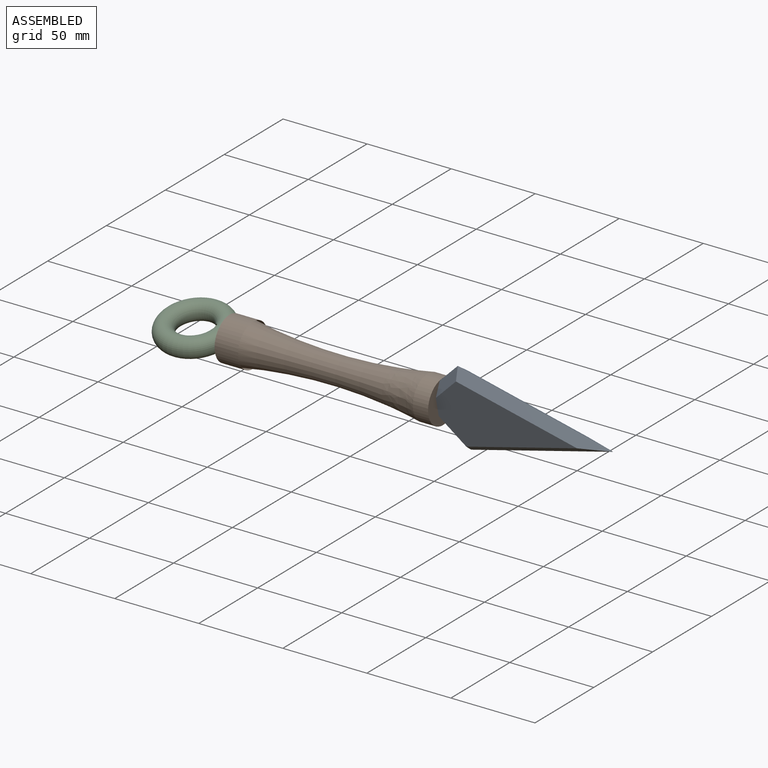
[diagram: assembled view]
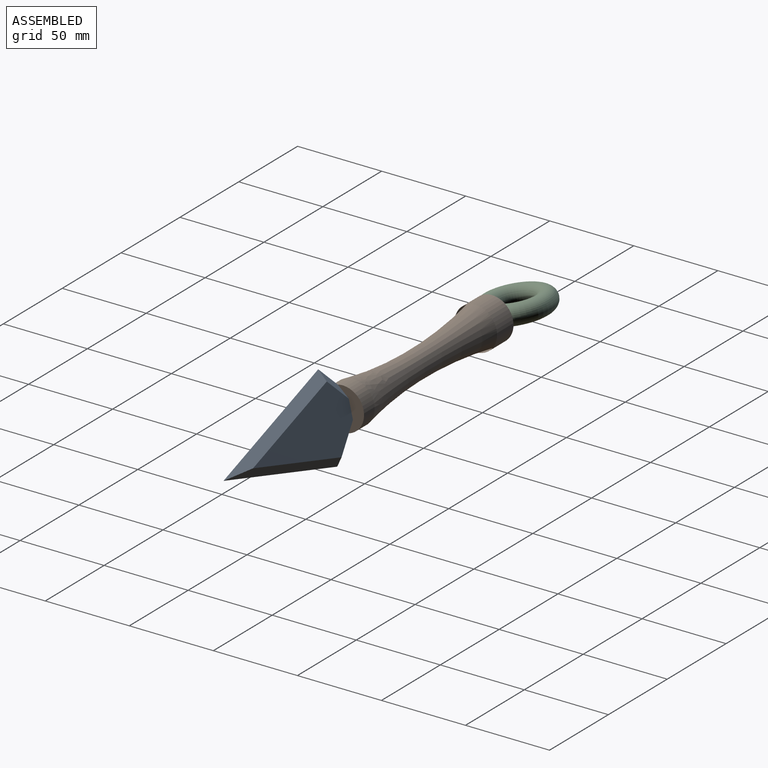
[diagram: assembled view, second angle]
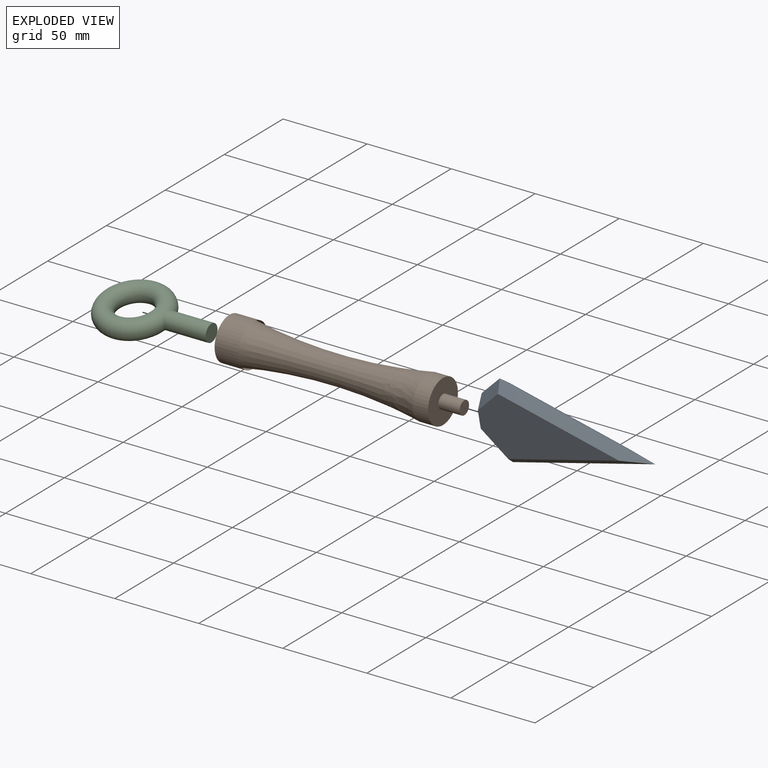
[diagram: exploded view]
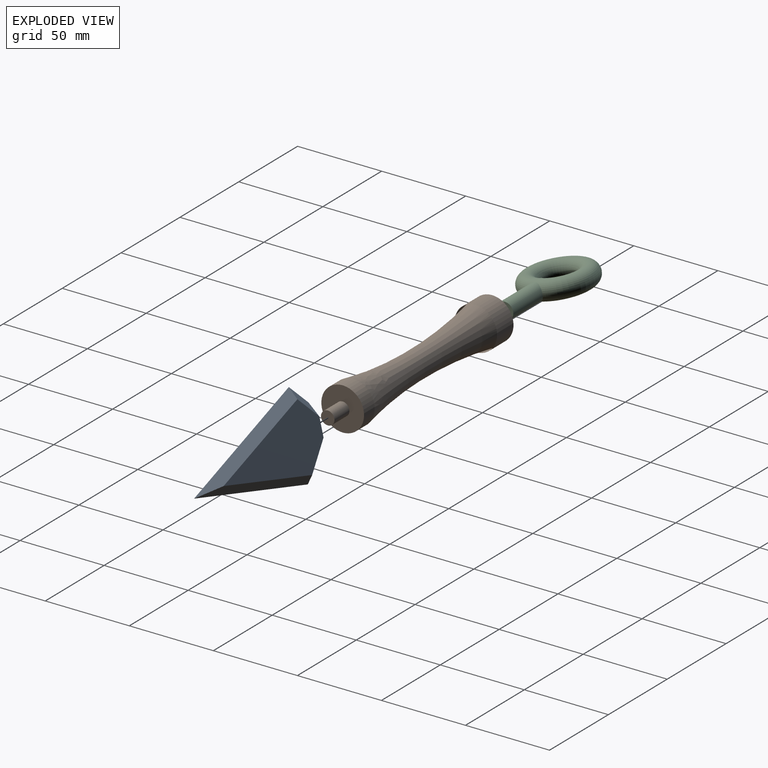
[diagram: exploded view, second angle]
ASSEMBLY  parts=3 mates=2
PART A: 13 faces, bbox 50.6x101.3x10 mm
  f0: plane 25.17x10mm, normal (0,-1,0), area 117.4mm2, adj f1,f2,f3,f5,f7,f9,f12
  f1: plane 83.11x39.39mm, normal (0,0,1), area 1715mm2, adj f0,f5,f6,f7,f8
  f2: plane 83.11x39.39mm, normal (0,0,-1), area 1715mm2, adj f0,f9,f10,f11,f12
  f3: cylinder r=4.5mm len=12.7mm, axis (0,1,0), area 359.1mm2, adj f0,f4
  f4: plane 9x9mm, normal (0,-1,0), area 63.6mm2, adj f3
  f5: plane 19.79x14.18mm, normal (0.5,-0.5,0.71), area 134.5mm2, adj f0,f1,f6,f12
  f6: plane 88.59x25.31mm, normal (0.68,0.19,0.71), area 579.2mm2, adj f1,f5,f8,f11
  f7: plane 19.79x14.18mm, normal (-0.5,-0.5,0.71), area 134.5mm2, adj f0,f1,f8,f9
  f8: plane 88.59x25.31mm, normal (-0.68,0.19,0.71), area 579.2mm2, adj f1,f6,f7,f10
  f9: plane 19.79x14.18mm, normal (-0.5,-0.5,-0.71), area 134.5mm2, adj f0,f2,f7,f10
  f10: plane 88.59x25.31mm, normal (-0.68,0.19,-0.71), area 579.2mm2, adj f2,f8,f9,f11
  f11: plane 88.59x25.31mm, normal (0.68,0.19,-0.71), area 579.2mm2, adj f2,f6,f10,f12
  f12: plane 19.79x14.18mm, normal (0.5,-0.5,-0.71), area 134.5mm2, adj f0,f2,f5,f11
PART B: 10 faces, bbox 25.4x139.7x25.4 mm
  f0: cylinder r=12.7mm len=25.4mm, axis (0,1,0), area 724.8mm2, adj f1,f5
  f1: plane 25.4x25.4mm, normal (0,1,0), area 456.4mm2, adj f0,f2
  f2: cylinder r=4mm len=12.7mm, axis (0,-1,0), area 319.2mm2, adj f1,f3
  f3: plane 8x8mm, normal (0,1,0), area 50.3mm2, adj f2
  f4: cone r=12.68mm half-angle=0.2deg, axis (0,1,0), area 510.7mm2, adj f5,f7
  f5: revolved ~110.38x25.4mm, area 6567.7mm2, adj f0,f4
  f6: plane 25.4x25.4mm, normal (0,-1,0), area 443.1mm2, adj f7,f8
  f7: cylinder r=12.7mm len=25.4mm, axis (0,1,0), area 1112.8mm2, adj f4,f6
  f8: cylinder r=4.5mm len=25.4mm, axis (0,1,0), area 718.2mm2, adj f6,f9
  f9: plane 9x9mm, normal (0,-1,0), area 63.6mm2, adj f8
PART C: 8 faces, bbox 68.9x46.4x11.4 mm
  f0: cylinder r=5.08mm len=2.69mm, axis (-1,0,0), area 0.7mm2, adj f2,f7
  f1: cylinder r=5.08mm len=2.69mm, axis (-1,0,0), area 0.7mm2, adj f2,f7
  f2: torus R=15.71mm, axis (0,0,1), area 3354.8mm2, adj f0,f1,f4,f5,f6
  f3: plane 10.16x10.16mm, normal (1,0,0), area 81.1mm2, adj f4
  f4: cylinder r=5.08mm len=27.39mm, axis (-1,0,0), area 830.1mm2, adj f2,f3
  f5: cylinder r=5.08mm len=9.8mm, axis (-1,0,0), area 31.6mm2, adj f2,f7
  f6: cylinder r=5.08mm len=9.8mm, axis (-1,0,0), area 31.6mm2, adj f2,f7
  f7: plane 10.16x10.16mm, normal (-1,0,0), area 81.1mm2, adj f0,f1,f5,f6
PLACE A rot(axis=(-0.53,-0.53,-0.66),112.9deg) t=(148.88,-22.75,-60.96)mm
PLACE B rot(axis=(-0.53,-0.53,-0.66),112.9deg) t=(72.68,-22.75,-60.96)mm
PLACE C rot(axis=(-1,0,0),167.1deg) t=(-11.14,-22.75,-60.96)mm
MATE fastened B.f8 <-> C.f0  axis (-1,0,0) through (34.58,-22.75,-60.96)mm
MATE fastened A.f3 <-> B.f2  axis (-1,0,0) through (148.88,-22.75,-60.96)mm
